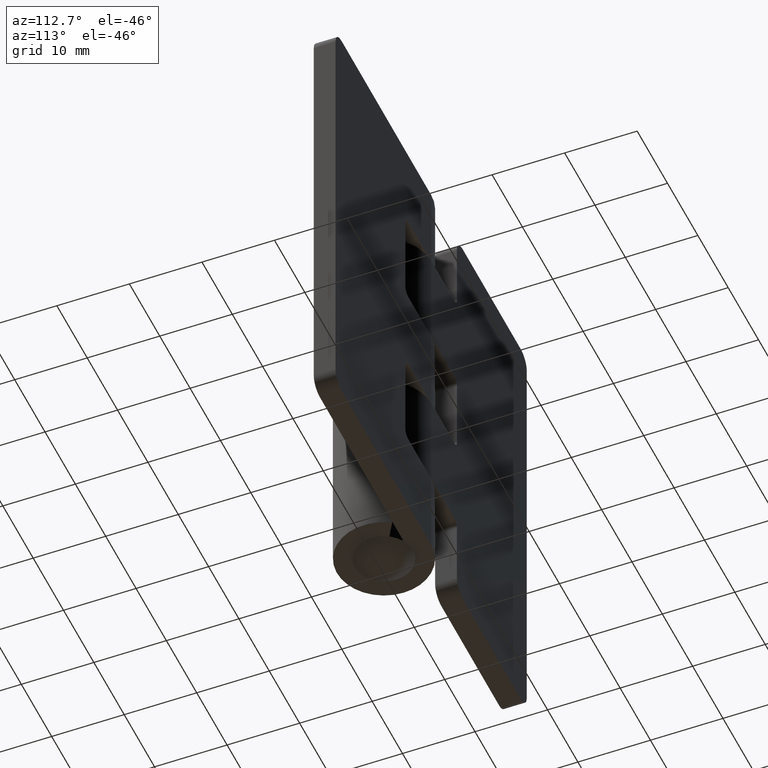
[diagram: clean part render]
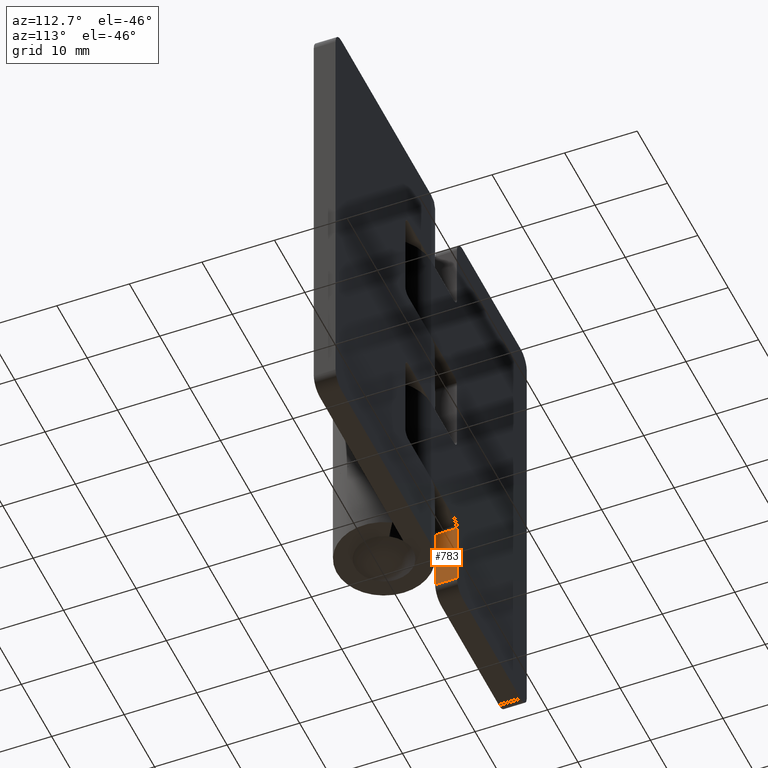
[diagram: same view with one face highlighted and labeled with its STEP entity id]
A machine part, auxiliary view. The second image highlights one B-rep face of the part: STEP entity #783.
In plain terms, the highlighted face is a freeform B-spline surface patch.
Its self-contained STEP definition (entity closure, byte-faithful):
#182=CARTESIAN_POINT('',(-8.500008000000110,3.499999000000000,11.100006000000040));
#183=VERTEX_POINT('',#182);
#199=CARTESIAN_POINT('',(-8.500008000000110,6.499999000000000,11.100006000000000));
#200=VERTEX_POINT('',#199);
#201=CARTESIAN_POINT('',(-8.500008000000110,6.499999000000000,11.100006000000000));
#202=CARTESIAN_POINT('',(-8.500008000000110,3.499999000000000,11.100006000000040));
#203=QUASI_UNIFORM_CURVE('',1,(#201,#202),.UNSPECIFIED.,.F.,.U.);
#204=EDGE_CURVE('',#200,#183,#203,.T.);
#367=CARTESIAN_POINT('',(-8.500008000000110,3.499999000000000,2.0));
#368=VERTEX_POINT('',#367);
#389=CARTESIAN_POINT('',(-8.500008000000110,6.499999000000000,2.0));
#390=VERTEX_POINT('',#389);
#404=CARTESIAN_POINT('',(-8.500008000000110,3.499999000000000,2.0));
#405=CARTESIAN_POINT('',(-8.500008000000110,6.499999000000000,2.0));
#406=QUASI_UNIFORM_CURVE('',1,(#404,#405),.UNSPECIFIED.,.F.,.U.);
#407=EDGE_CURVE('',#368,#390,#406,.T.);
#764=CARTESIAN_POINT('',(-8.500008000000110,6.649849039791019,1.545454717937576));
#765=CARTESIAN_POINT('',(-8.500008000000110,6.649849039791019,11.554551526143650));
#766=CARTESIAN_POINT('',(-8.500008000000110,3.350149147963613,1.545454717937576));
#767=CARTESIAN_POINT('',(-8.500008000000110,3.350149147963613,11.554551526143650));
#768=B_SPLINE_SURFACE_WITH_KNOTS('',1,1,((#764,#766),(#765,#767)),.UNSPECIFIED.,.F.,.F.,.U.,(2,2),(2,2),(0.0,10.009096808206071),(0.0,3.299699891827406),.UNSPECIFIED.);
#769=CARTESIAN_POINT('',(-8.500008000000110,6.499999000000000,2.0));
#770=CARTESIAN_POINT('',(-8.500008000000110,6.499999000000000,11.100006000000000));
#771=QUASI_UNIFORM_CURVE('',1,(#769,#770),.UNSPECIFIED.,.F.,.U.);
#772=EDGE_CURVE('',#390,#200,#771,.T.);
#773=ORIENTED_EDGE('',*,*,#772,.T.);
#774=ORIENTED_EDGE('',*,*,#204,.T.);
#775=CARTESIAN_POINT('',(-8.500008000000110,3.499999000000000,2.0));
#776=CARTESIAN_POINT('',(-8.500008000000110,3.499999000000000,11.100006000000040));
#777=QUASI_UNIFORM_CURVE('',1,(#775,#776),.UNSPECIFIED.,.F.,.U.);
#778=EDGE_CURVE('',#368,#183,#777,.T.);
#779=ORIENTED_EDGE('',*,*,#778,.F.);
#780=ORIENTED_EDGE('',*,*,#407,.T.);
#781=EDGE_LOOP('',(#773,#774,#779,#780));
#782=FACE_OUTER_BOUND('',#781,.T.);
#783=ADVANCED_FACE('',(#782),#768,.T.);